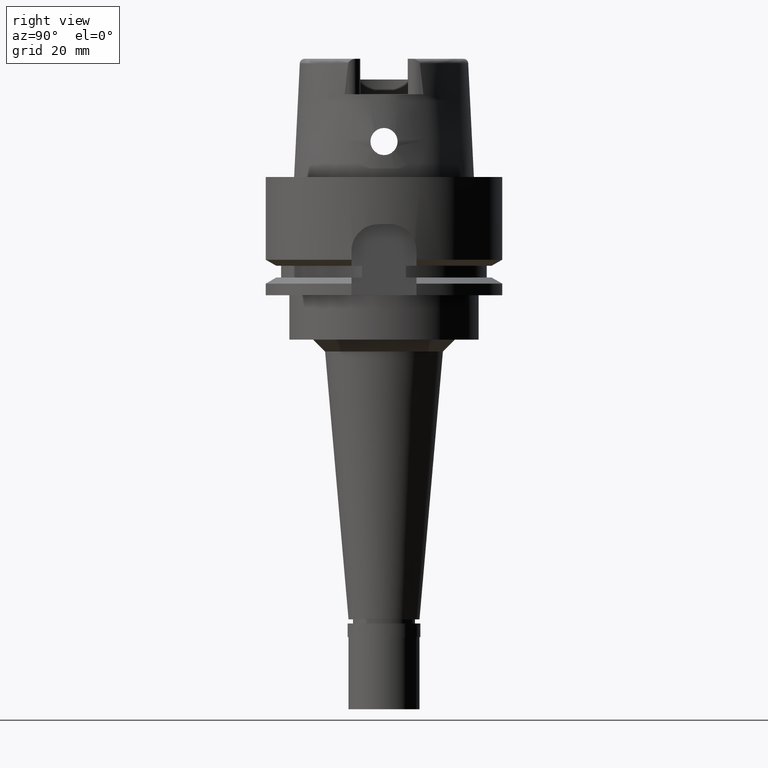
[diagram: clean part render]
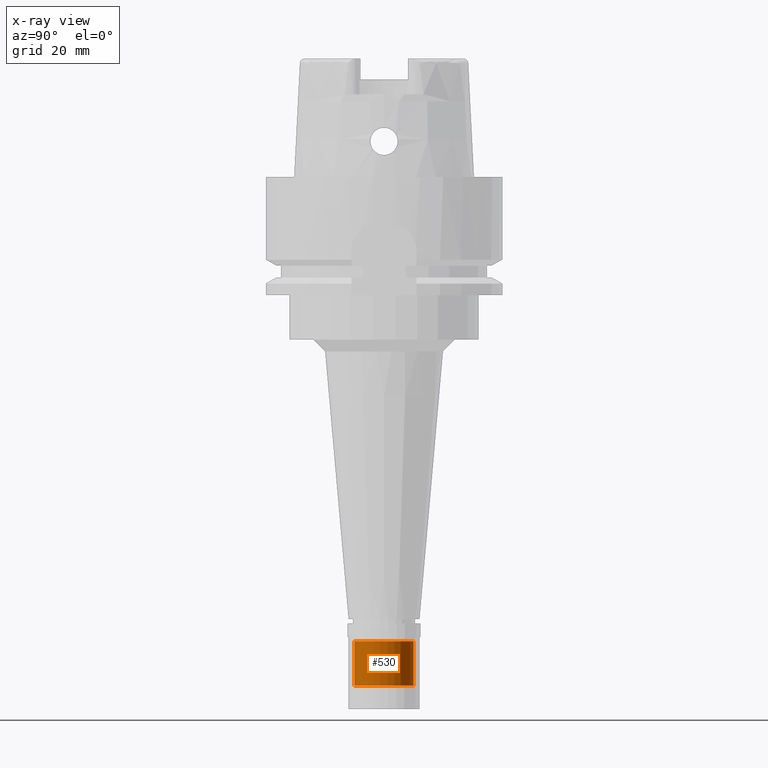
[diagram: x-ray — body ghosted, one internal face saturated and labeled with its STEP entity id]
A machine part, right view, then the same camera in x-ray: the body is ghosted and one INTERNAL B-rep face — a face not visible from any outside direction — is saturated and labeled: STEP entity #530.
In plain terms, the highlighted cylindrical surface (edge-blend (fillet) strip) has radius 5 mm, axis along (0, 0, -1).
Its self-contained STEP definition (entity closure, byte-faithful):
#165 = AXIS2_PLACEMENT_3D ( 'NONE', #2579, #2971, #531 ) ;
#241 = EDGE_CURVE ( 'NONE', #787, #1671, #2644, .T. ) ;
#302 = VERTEX_POINT ( 'NONE', #3300 ) ;
#530 = ADVANCED_FACE ( 'NONE', ( #4822 ), #2325, .T. ) ;
#531 = DIRECTION ( 'NONE',  ( 0.0000000000000000000, 1.000000000000000000, 0.0000000000000000000 ) ) ;
#787 = VERTEX_POINT ( 'NONE', #3817 ) ;
#842 = DIRECTION ( 'NONE',  ( 0.0000000000000000000, 0.0000000000000000000, -1.000000000000000000 ) ) ;
#911 = ORIENTED_EDGE ( 'NONE', *, *, #241, .T. ) ;
#1028 = CIRCLE ( 'NONE', #165, 5.000000000000000000 ) ;
#1051 = VECTOR ( 'NONE', #2467, 1000.000000000000000 ) ;
#1250 = DIRECTION ( 'NONE',  ( 0.0000000000000000000, 0.0000000000000000000, 1.000000000000000000 ) ) ;
#1390 = VERTEX_POINT ( 'NONE', #2754 ) ;
#1550 = DIRECTION ( 'NONE',  ( 0.0000000000000000000, -1.000000000000000000, 0.0000000000000000000 ) ) ;
#1671 = VERTEX_POINT ( 'NONE', #2351 ) ;
#1676 = DIRECTION ( 'NONE',  ( 0.0000000000000000000, -1.000000000000000000, 0.0000000000000000000 ) ) ;
#1919 = DIRECTION ( 'NONE',  ( 0.0000000000000000000, 0.0000000000000000000, -1.000000000000000000 ) ) ;
#2095 = ORIENTED_EDGE ( 'NONE', *, *, #2289, .T. ) ;
#2289 = EDGE_CURVE ( 'NONE', #1390, #302, #1028, .T. ) ;
#2295 = VECTOR ( 'NONE', #842, 1000.000000000000000 ) ;
#2317 = ORIENTED_EDGE ( 'NONE', *, *, #5031, .T. ) ;
#2325 = CYLINDRICAL_SURFACE ( 'NONE', #4364, 5.000000000000000000 ) ;
#2351 = CARTESIAN_POINT ( 'NONE',  ( 0.0000000000000000000, 5.000000000000000000, -86.00000000000000000 ) ) ;
#2467 = DIRECTION ( 'NONE',  ( 0.0000000000000000000, 0.0000000000000000000, -1.000000000000000000 ) ) ;
#2493 = EDGE_LOOP ( 'NONE', ( #2095, #2317, #911, #3192 ) ) ;
#2579 = CARTESIAN_POINT ( 'NONE',  ( 0.0000000000000000000, 1.534482439332000152E-14, -78.50000000000000000 ) ) ;
#2644 = CIRCLE ( 'NONE', #3068, 5.000000000000000000 ) ;
#2754 = CARTESIAN_POINT ( 'NONE',  ( 0.0000000000000000000, 5.000000000000000000, -78.50000000000000000 ) ) ;
#2971 = DIRECTION ( 'NONE',  ( 0.0000000000000000000, 0.0000000000000000000, -1.000000000000000000 ) ) ;
#3068 = AXIS2_PLACEMENT_3D ( 'NONE', #4454, #1250, #1676 ) ;
#3192 = ORIENTED_EDGE ( 'NONE', *, *, #4478, .F. ) ;
#3225 = CARTESIAN_POINT ( 'NONE',  ( 0.0000000000000000000, 1.534482439332000152E-14, 25.30000000000000071 ) ) ;
#3300 = CARTESIAN_POINT ( 'NONE',  ( 0.0000000000000000000, -5.000000000000000000, -78.50000000000000000 ) ) ;
#3641 = LINE ( 'NONE', #4068, #1051 ) ;
#3661 = LINE ( 'NONE', #4499, #2295 ) ;
#3817 = CARTESIAN_POINT ( 'NONE',  ( 0.0000000000000000000, -5.000000000000000000, -86.00000000000000000 ) ) ;
#4068 = CARTESIAN_POINT ( 'NONE',  ( 0.0000000000000000000, -5.000000000000000000, -78.50000000000000000 ) ) ;
#4364 = AXIS2_PLACEMENT_3D ( 'NONE', #3225, #1919, #1550 ) ;
#4454 = CARTESIAN_POINT ( 'NONE',  ( 0.0000000000000000000, 1.534482439332000152E-14, -86.00000000000000000 ) ) ;
#4478 = EDGE_CURVE ( 'NONE', #1390, #1671, #3661, .T. ) ;
#4499 = CARTESIAN_POINT ( 'NONE',  ( 0.0000000000000000000, 5.000000000000000000, -78.50000000000000000 ) ) ;
#4822 = FACE_OUTER_BOUND ( 'NONE', #2493, .T. ) ;
#5031 = EDGE_CURVE ( 'NONE', #302, #787, #3641, .T. ) ;